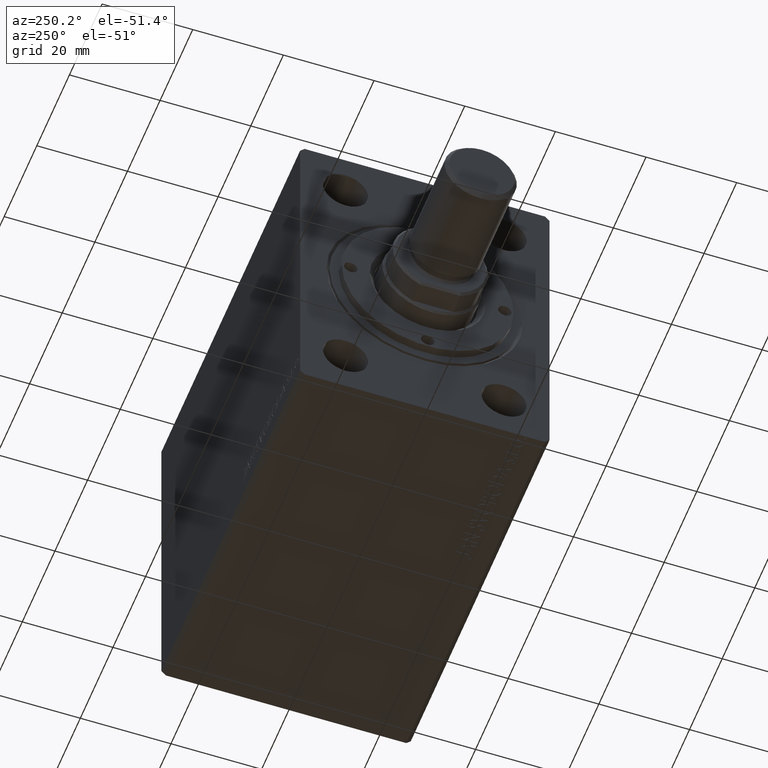
[diagram: clean part render]
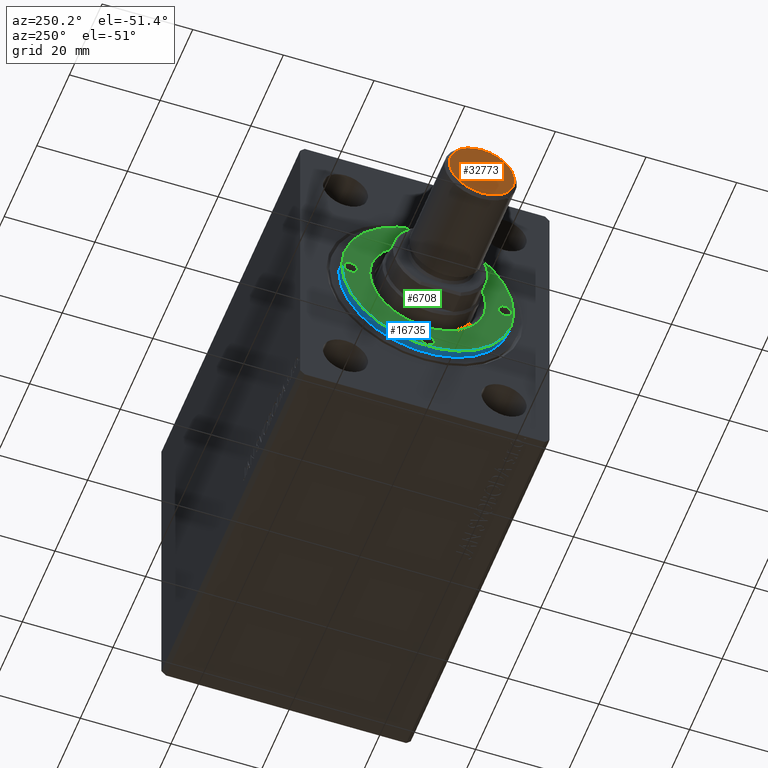
[diagram: same view with three faces highlighted in distinct colors, each labeled with its STEP entity id]
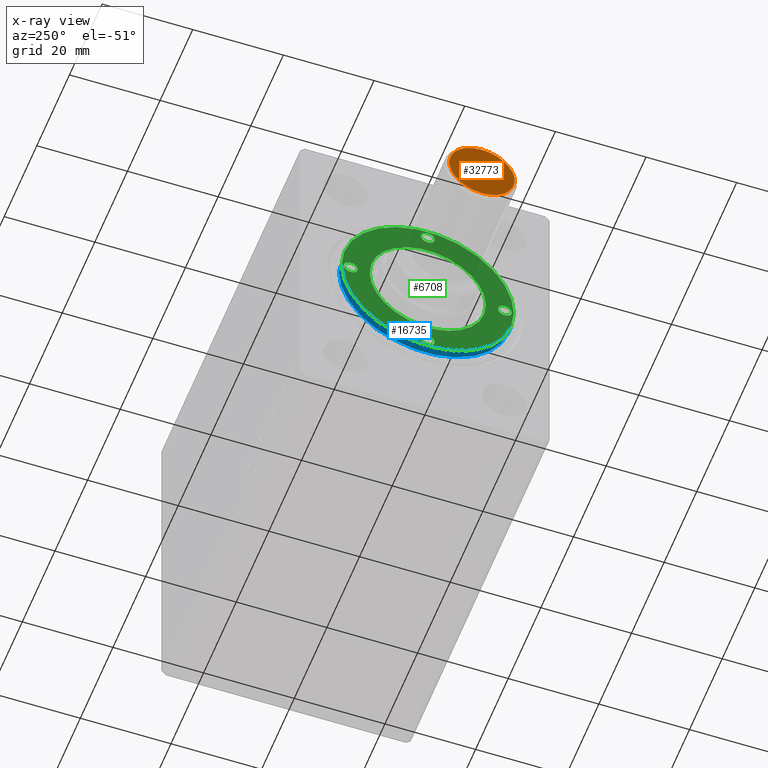
[diagram: x-ray of the same camera — body ghosted, the three highlighted faces saturated]
A machine part, auxiliary view with three faces highlighted in distinct colors.
The next image is the same camera in x-ray (body ghosted, the three faces saturated) — at least one of them is partly hidden behind the body in this view.
Their STEP definitions:

[orange] entity #32773 — the highlighted planar face has unit normal (1, -0, -0).
#2075 = EDGE_CURVE ( 'NONE', #15907, #5575, #24655, .T. ) ;
#4460 = CARTESIAN_POINT ( 'NONE',  ( 0.000000000000000000, 0.000000000000000000, 0.000000000000000000 ) ) ;
#5575 = VERTEX_POINT ( 'NONE', #35274 ) ;
#7605 = DIRECTION ( 'NONE',  ( 1.000000000000000000, 0.000000000000000000, 0.000000000000000000 ) ) ;
#10264 = FACE_OUTER_BOUND ( 'NONE', #11989, .T. ) ;
#11989 = EDGE_LOOP ( 'NONE', ( #17462, #38004 ) ) ;
#15325 = AXIS2_PLACEMENT_3D ( 'NONE', #4460, #38378, #7605 ) ;
#15907 = VERTEX_POINT ( 'NONE', #17241 ) ;
#16512 = CARTESIAN_POINT ( 'NONE',  ( 0.000000000000000000, 0.000000000000000000, 0.000000000000000000 ) ) ;
#16985 = PLANE ( 'NONE',  #30335 ) ;
#17241 = CARTESIAN_POINT ( 'NONE',  ( -7.199999999999978861, 9.307315673519871654E-16, 0.000000000000000000 ) ) ;
#17462 = ORIENTED_EDGE ( 'NONE', *, *, #26221, .T. ) ;
#20128 = DIRECTION ( 'NONE',  ( 0.000000000000000000, 0.000000000000000000, 1.000000000000000000 ) ) ;
#21457 = CIRCLE ( 'NONE', #42991, 7.199999999999978861 ) ;
#24655 = CIRCLE ( 'NONE', #15325, 7.199999999999978861 ) ;
#26221 = EDGE_CURVE ( 'NONE', #5575, #15907, #21457, .T. ) ;
#30335 = AXIS2_PLACEMENT_3D ( 'NONE', #37665, #20128, #36997 ) ;
#32773 = ADVANCED_FACE ( 'NONE', ( #10264 ), #16985, .F. ) ;
#35274 = CARTESIAN_POINT ( 'NONE',  ( 7.199999999999978861, 0.000000000000000000, 0.000000000000000000 ) ) ;
#36997 = DIRECTION ( 'NONE',  ( 1.000000000000000000, 0.000000000000000000, -0.000000000000000000 ) ) ;
#37665 = CARTESIAN_POINT ( 'NONE',  ( 0.000000000000000000, 0.000000000000000000, 0.000000000000000000 ) ) ;
#38004 = ORIENTED_EDGE ( 'NONE', *, *, #2075, .T. ) ;
#38378 = DIRECTION ( 'NONE',  ( -0.000000000000000000, -0.000000000000000000, -1.000000000000000000 ) ) ;
#41440 = DIRECTION ( 'NONE',  ( 1.000000000000000000, 0.000000000000000000, 0.000000000000000000 ) ) ;
#42991 = AXIS2_PLACEMENT_3D ( 'NONE', #16512, #43706, #41440 ) ;
#43706 = DIRECTION ( 'NONE',  ( -0.000000000000000000, -0.000000000000000000, -1.000000000000000000 ) ) ;

[blue] entity #16735 — the highlighted cylindrical surface (partial cylindrical patch) has radius 19 mm, axis along (1, -0, 0).
#471 = VECTOR ( 'NONE', #7290, 1000.000000000000000 ) ;
#790 = CIRCLE ( 'NONE', #35933, 19.00000000000000000 ) ;
#1188 = VECTOR ( 'NONE', #4803, 1000.000000000000000 ) ;
#4132 = CARTESIAN_POINT ( 'NONE',  ( -19.00000000000000000, 0.000000000000000000, 9.999999999999998224 ) ) ;
#4525 = VERTEX_POINT ( 'NONE', #9909 ) ;
#4803 = DIRECTION ( 'NONE',  ( -0.000000000000000000, -0.000000000000000000, -1.000000000000000000 ) ) ;
#4810 = ORIENTED_EDGE ( 'NONE', *, *, #14011, .F. ) ;
#6768 = DIRECTION ( 'NONE',  ( 0.000000000000000000, 0.000000000000000000, 1.000000000000000000 ) ) ;
#7290 = DIRECTION ( 'NONE',  ( -0.000000000000000000, -0.000000000000000000, -1.000000000000000000 ) ) ;
#8098 = DIRECTION ( 'NONE',  ( -0.000000000000000000, -0.000000000000000000, -1.000000000000000000 ) ) ;
#8254 = ORIENTED_EDGE ( 'NONE', *, *, #31300, .F. ) ;
#9909 = CARTESIAN_POINT ( 'NONE',  ( -19.00000000000000000, 0.000000000000000000, 8.199999999999999289 ) ) ;
#13417 = AXIS2_PLACEMENT_3D ( 'NONE', #13489, #27201, #40013 ) ;
#13489 = CARTESIAN_POINT ( 'NONE',  ( 0.000000000000000000, 0.000000000000000000, 8.199999999999999289 ) ) ;
#14011 = EDGE_CURVE ( 'NONE', #32366, #4525, #43696, .T. ) ;
#14101 = EDGE_CURVE ( 'NONE', #41631, #35534, #35575, .T. ) ;
#15050 = FACE_OUTER_BOUND ( 'NONE', #27544, .T. ) ;
#15633 = ORIENTED_EDGE ( 'NONE', *, *, #16483, .T. ) ;
#16483 = EDGE_CURVE ( 'NONE', #35534, #4525, #23460, .T. ) ;
#16735 = ADVANCED_FACE ( 'NONE', ( #15050 ), #32348, .T. ) ;
#18188 = DIRECTION ( 'NONE',  ( -1.000000000000000000, 0.000000000000000000, 0.000000000000000000 ) ) ;
#20392 = CARTESIAN_POINT ( 'NONE',  ( 19.00000000000000000, 2.326828918379970970E-15, 9.999999999999998224 ) ) ;
#20449 = DIRECTION ( 'NONE',  ( 1.000000000000000000, 0.000000000000000000, 0.000000000000000000 ) ) ;
#23460 = CIRCLE ( 'NONE', #13417, 19.00000000000000000 ) ;
#23839 = CARTESIAN_POINT ( 'NONE',  ( 0.000000000000000000, 0.000000000000000000, 9.999999999999998224 ) ) ;
#24111 = ORIENTED_EDGE ( 'NONE', *, *, #14101, .T. ) ;
#25022 = CARTESIAN_POINT ( 'NONE',  ( 19.00000000000000000, 2.326828918379970970E-15, 9.999999999999998224 ) ) ;
#27081 = AXIS2_PLACEMENT_3D ( 'NONE', #39534, #8098, #18188 ) ;
#27201 = DIRECTION ( 'NONE',  ( 0.000000000000000000, 0.000000000000000000, 1.000000000000000000 ) ) ;
#27544 = EDGE_LOOP ( 'NONE', ( #8254, #24111, #15633, #4810 ) ) ;
#31300 = EDGE_CURVE ( 'NONE', #41631, #32366, #790, .T. ) ;
#32348 = CYLINDRICAL_SURFACE ( 'NONE', #27081, 19.00000000000000000 ) ;
#32366 = VERTEX_POINT ( 'NONE', #33018 ) ;
#33018 = CARTESIAN_POINT ( 'NONE',  ( -19.00000000000000000, 0.000000000000000000, 9.999999999999998224 ) ) ;
#35534 = VERTEX_POINT ( 'NONE', #36214 ) ;
#35575 = LINE ( 'NONE', #25022, #1188 ) ;
#35933 = AXIS2_PLACEMENT_3D ( 'NONE', #23839, #6768, #20449 ) ;
#36214 = CARTESIAN_POINT ( 'NONE',  ( 19.00000000000000000, 2.326828918379970970E-15, 8.199999999999999289 ) ) ;
#39534 = CARTESIAN_POINT ( 'NONE',  ( 0.000000000000000000, 0.000000000000000000, 9.999999999999998224 ) ) ;
#40013 = DIRECTION ( 'NONE',  ( 1.000000000000000000, 0.000000000000000000, 0.000000000000000000 ) ) ;
#41631 = VERTEX_POINT ( 'NONE', #20392 ) ;
#43696 = LINE ( 'NONE', #4132, #471 ) ;

[green] entity #6708 — the highlighted planar face has unit normal (-1, 0, 0).
#30 = FACE_BOUND ( 'NONE', #4094, .T. ) ;
#43 = ORIENTED_EDGE ( 'NONE', *, *, #19773, .F. ) ;
#713 = EDGE_LOOP ( 'NONE', ( #43648, #43 ) ) ;
#753 = CIRCLE ( 'NONE', #10795, 1.499999999999997780 ) ;
#790 = CIRCLE ( 'NONE', #35933, 19.00000000000000000 ) ;
#1466 = AXIS2_PLACEMENT_3D ( 'NONE', #42974, #5025, #18913 ) ;
#1606 = DIRECTION ( 'NONE',  ( -0.000000000000000000, -0.000000000000000000, 1.000000000000000000 ) ) ;
#3048 = CARTESIAN_POINT ( 'NONE',  ( -18.50000000000000000, 1.836970198721026236E-16, 9.999999999999998224 ) ) ;
#3472 = CIRCLE ( 'NONE', #10634, 12.79999999999997407 ) ;
#4094 = EDGE_LOOP ( 'NONE', ( #41979, #28361 ) ) ;
#4120 = CIRCLE ( 'NONE', #14154, 1.499999999999996891 ) ;
#4435 = CARTESIAN_POINT ( 'NONE',  ( 0.000000000000000000, -17.00000000000000000, 9.999999999999998224 ) ) ;
#4471 = EDGE_LOOP ( 'NONE', ( #30157, #41298 ) ) ;
#4545 = DIRECTION ( 'NONE',  ( 1.000000000000000000, 0.000000000000000000, 0.000000000000000000 ) ) ;
#4724 = DIRECTION ( 'NONE',  ( -0.000000000000000000, -0.000000000000000000, 1.000000000000000000 ) ) ;
#5025 = DIRECTION ( 'NONE',  ( -0.000000000000000000, -0.000000000000000000, -1.000000000000000000 ) ) ;
#5566 = CIRCLE ( 'NONE', #34976, 1.499999999999996891 ) ;
#6019 = DIRECTION ( 'NONE',  ( 1.000000000000000000, 0.000000000000000000, 0.000000000000000000 ) ) ;
#6708 = ADVANCED_FACE ( 'NONE', ( #31019, #26980, #30, #24282, #30569, #33944 ), #13939, .T. ) ;
#6762 = CARTESIAN_POINT ( 'NONE',  ( 18.50000000000000000, 0.000000000000000000, 9.999999999999998224 ) ) ;
#6766 = CARTESIAN_POINT ( 'NONE',  ( 0.000000000000000000, 0.000000000000000000, 9.999999999999998224 ) ) ;
#6768 = DIRECTION ( 'NONE',  ( 0.000000000000000000, 0.000000000000000000, 1.000000000000000000 ) ) ;
#6859 = CARTESIAN_POINT ( 'NONE',  ( 0.000000000000000000, -17.00000000000000000, 9.999999999999998224 ) ) ;
#7738 = VERTEX_POINT ( 'NONE', #30314 ) ;
#7858 = VERTEX_POINT ( 'NONE', #41533 ) ;
#9127 = CIRCLE ( 'NONE', #27077, 1.499999999999996891 ) ;
#10104 = ORIENTED_EDGE ( 'NONE', *, *, #41103, .F. ) ;
#10482 = CARTESIAN_POINT ( 'NONE',  ( 17.00000000000000000, 0.000000000000000000, 9.999999999999998224 ) ) ;
#10634 = AXIS2_PLACEMENT_3D ( 'NONE', #38616, #11657, #38391 ) ;
#10795 = AXIS2_PLACEMENT_3D ( 'NONE', #10482, #34513, #34066 ) ;
#10805 = DIRECTION ( 'NONE',  ( 1.000000000000000000, 0.000000000000000000, -0.000000000000000000 ) ) ;
#10948 = DIRECTION ( 'NONE',  ( 1.000000000000000000, 0.000000000000000000, 0.000000000000000000 ) ) ;
#11657 = DIRECTION ( 'NONE',  ( -0.000000000000000000, -0.000000000000000000, -1.000000000000000000 ) ) ;
#11929 = EDGE_CURVE ( 'NONE', #25960, #21723, #35555, .T. ) ;
#12867 = CIRCLE ( 'NONE', #37978, 1.499999999999996891 ) ;
#13512 = VERTEX_POINT ( 'NONE', #32092 ) ;
#13939 = PLANE ( 'NONE',  #33274 ) ;
#14154 = AXIS2_PLACEMENT_3D ( 'NONE', #4435, #41731, #10948 ) ;
#15105 = CARTESIAN_POINT ( 'NONE',  ( 12.79999999999997407, 0.000000000000000000, 9.999999999999998224 ) ) ;
#15270 = DIRECTION ( 'NONE',  ( 1.000000000000000000, 0.000000000000000000, 0.000000000000000000 ) ) ;
#15385 = CARTESIAN_POINT ( 'NONE',  ( -17.00000000000000000, 0.000000000000000000, 9.999999999999998224 ) ) ;
#16345 = DIRECTION ( 'NONE',  ( -0.000000000000000000, -0.000000000000000000, 1.000000000000000000 ) ) ;
#16801 = EDGE_CURVE ( 'NONE', #7738, #32352, #5566, .T. ) ;
#17087 = DIRECTION ( 'NONE',  ( 0.000000000000000000, 0.000000000000000000, 1.000000000000000000 ) ) ;
#18119 = EDGE_CURVE ( 'NONE', #41851, #33988, #31417, .T. ) ;
#18913 = DIRECTION ( 'NONE',  ( 1.000000000000000000, 0.000000000000000000, 0.000000000000000000 ) ) ;
#19367 = DIRECTION ( 'NONE',  ( -0.000000000000000000, -0.000000000000000000, 1.000000000000000000 ) ) ;
#19773 = EDGE_CURVE ( 'NONE', #21723, #25960, #20548, .T. ) ;
#19835 = AXIS2_PLACEMENT_3D ( 'NONE', #37356, #19367, #33311 ) ;
#19905 = AXIS2_PLACEMENT_3D ( 'NONE', #21598, #1606, #4545 ) ;
#20389 = EDGE_CURVE ( 'NONE', #32352, #7738, #9127, .T. ) ;
#20392 = CARTESIAN_POINT ( 'NONE',  ( 19.00000000000000000, 2.326828918379970970E-15, 9.999999999999998224 ) ) ;
#20404 = ORIENTED_EDGE ( 'NONE', *, *, #31300, .T. ) ;
#20449 = DIRECTION ( 'NONE',  ( 1.000000000000000000, 0.000000000000000000, 0.000000000000000000 ) ) ;
#20540 = DIRECTION ( 'NONE',  ( -0.000000000000000000, -0.000000000000000000, 1.000000000000000000 ) ) ;
#20548 = CIRCLE ( 'NONE', #19835, 1.499999999999997780 ) ;
#20665 = EDGE_LOOP ( 'NONE', ( #32632, #34320 ) ) ;
#20731 = EDGE_CURVE ( 'NONE', #7858, #33027, #4120, .T. ) ;
#20806 = CIRCLE ( 'NONE', #1466, 12.79999999999997407 ) ;
#21455 = DIRECTION ( 'NONE',  ( -0.000000000000000000, -0.000000000000000000, 1.000000000000000000 ) ) ;
#21598 = CARTESIAN_POINT ( 'NONE',  ( 17.00000000000000000, 0.000000000000000000, 9.999999999999998224 ) ) ;
#21723 = VERTEX_POINT ( 'NONE', #3048 ) ;
#22069 = VERTEX_POINT ( 'NONE', #15105 ) ;
#22446 = CARTESIAN_POINT ( 'NONE',  ( 0.000000000000000000, 17.00000000000000000, 9.999999999999998224 ) ) ;
#23275 = CARTESIAN_POINT ( 'NONE',  ( 15.50000000000000355, 1.836970198721027222E-16, 9.999999999999998224 ) ) ;
#23839 = CARTESIAN_POINT ( 'NONE',  ( 0.000000000000000000, 0.000000000000000000, 9.999999999999998224 ) ) ;
#23980 = DIRECTION ( 'NONE',  ( 0.000000000000000000, 0.000000000000000000, 1.000000000000000000 ) ) ;
#24074 = ORIENTED_EDGE ( 'NONE', *, *, #20731, .F. ) ;
#24271 = EDGE_CURVE ( 'NONE', #32366, #41631, #37186, .T. ) ;
#24282 = FACE_BOUND ( 'NONE', #42046, .T. ) ;
#24610 = DIRECTION ( 'NONE',  ( 1.000000000000000000, 0.000000000000000000, 0.000000000000000000 ) ) ;
#25960 = VERTEX_POINT ( 'NONE', #41063 ) ;
#26980 = FACE_BOUND ( 'NONE', #4471, .T. ) ;
#27077 = AXIS2_PLACEMENT_3D ( 'NONE', #33201, #16345, #43770 ) ;
#27519 = DIRECTION ( 'NONE',  ( 1.000000000000000000, 0.000000000000000000, 0.000000000000000000 ) ) ;
#28361 = ORIENTED_EDGE ( 'NONE', *, *, #18119, .F. ) ;
#30157 = ORIENTED_EDGE ( 'NONE', *, *, #16801, .F. ) ;
#30314 = CARTESIAN_POINT ( 'NONE',  ( 1.499999999999996891, 17.00000000000000000, 9.999999999999998224 ) ) ;
#30569 = FACE_BOUND ( 'NONE', #20665, .T. ) ;
#31019 = FACE_BOUND ( 'NONE', #713, .T. ) ;
#31300 = EDGE_CURVE ( 'NONE', #41631, #32366, #790, .T. ) ;
#31417 = CIRCLE ( 'NONE', #19905, 1.499999999999997780 ) ;
#32092 = CARTESIAN_POINT ( 'NONE',  ( -12.79999999999997407, 1.567547902908609029E-15, 9.999999999999998224 ) ) ;
#32352 = VERTEX_POINT ( 'NONE', #32791 ) ;
#32366 = VERTEX_POINT ( 'NONE', #33018 ) ;
#32632 = ORIENTED_EDGE ( 'NONE', *, *, #33476, .T. ) ;
#32791 = CARTESIAN_POINT ( 'NONE',  ( -1.499999999999996891, 17.00000000000000000, 9.999999999999998224 ) ) ;
#33018 = CARTESIAN_POINT ( 'NONE',  ( -19.00000000000000000, 0.000000000000000000, 9.999999999999998224 ) ) ;
#33027 = VERTEX_POINT ( 'NONE', #40761 ) ;
#33201 = CARTESIAN_POINT ( 'NONE',  ( 0.000000000000000000, 17.00000000000000000, 9.999999999999998224 ) ) ;
#33274 = AXIS2_PLACEMENT_3D ( 'NONE', #6766, #17087, #10805 ) ;
#33311 = DIRECTION ( 'NONE',  ( 1.000000000000000000, 0.000000000000000000, 0.000000000000000000 ) ) ;
#33476 = EDGE_CURVE ( 'NONE', #22069, #13512, #3472, .T. ) ;
#33944 = FACE_OUTER_BOUND ( 'NONE', #41386, .T. ) ;
#33988 = VERTEX_POINT ( 'NONE', #6762 ) ;
#34066 = DIRECTION ( 'NONE',  ( 1.000000000000000000, 0.000000000000000000, 0.000000000000000000 ) ) ;
#34304 = CARTESIAN_POINT ( 'NONE',  ( 0.000000000000000000, 0.000000000000000000, 9.999999999999998224 ) ) ;
#34320 = ORIENTED_EDGE ( 'NONE', *, *, #43975, .T. ) ;
#34513 = DIRECTION ( 'NONE',  ( -0.000000000000000000, -0.000000000000000000, 1.000000000000000000 ) ) ;
#34976 = AXIS2_PLACEMENT_3D ( 'NONE', #22446, #4724, #15270 ) ;
#35555 = CIRCLE ( 'NONE', #39155, 1.499999999999997780 ) ;
#35933 = AXIS2_PLACEMENT_3D ( 'NONE', #23839, #6768, #20449 ) ;
#37186 = CIRCLE ( 'NONE', #42924, 19.00000000000000000 ) ;
#37356 = CARTESIAN_POINT ( 'NONE',  ( -17.00000000000000000, 0.000000000000000000, 9.999999999999998224 ) ) ;
#37978 = AXIS2_PLACEMENT_3D ( 'NONE', #6859, #20540, #27519 ) ;
#38391 = DIRECTION ( 'NONE',  ( 1.000000000000000000, 0.000000000000000000, 0.000000000000000000 ) ) ;
#38616 = CARTESIAN_POINT ( 'NONE',  ( 0.000000000000000000, 0.000000000000000000, 9.999999999999998224 ) ) ;
#39155 = AXIS2_PLACEMENT_3D ( 'NONE', #15385, #21455, #24610 ) ;
#40761 = CARTESIAN_POINT ( 'NONE',  ( 1.499999999999996891, -17.00000000000000000, 9.999999999999998224 ) ) ;
#41063 = CARTESIAN_POINT ( 'NONE',  ( -15.50000000000000355, 0.000000000000000000, 9.999999999999998224 ) ) ;
#41103 = EDGE_CURVE ( 'NONE', #33027, #7858, #12867, .T. ) ;
#41298 = ORIENTED_EDGE ( 'NONE', *, *, #20389, .F. ) ;
#41386 = EDGE_LOOP ( 'NONE', ( #41664, #20404 ) ) ;
#41533 = CARTESIAN_POINT ( 'NONE',  ( -1.499999999999996891, -17.00000000000000000, 9.999999999999998224 ) ) ;
#41631 = VERTEX_POINT ( 'NONE', #20392 ) ;
#41664 = ORIENTED_EDGE ( 'NONE', *, *, #24271, .T. ) ;
#41731 = DIRECTION ( 'NONE',  ( -0.000000000000000000, -0.000000000000000000, 1.000000000000000000 ) ) ;
#41851 = VERTEX_POINT ( 'NONE', #23275 ) ;
#41979 = ORIENTED_EDGE ( 'NONE', *, *, #43515, .F. ) ;
#42046 = EDGE_LOOP ( 'NONE', ( #10104, #24074 ) ) ;
#42924 = AXIS2_PLACEMENT_3D ( 'NONE', #34304, #23980, #6019 ) ;
#42974 = CARTESIAN_POINT ( 'NONE',  ( 0.000000000000000000, 0.000000000000000000, 9.999999999999998224 ) ) ;
#43515 = EDGE_CURVE ( 'NONE', #33988, #41851, #753, .T. ) ;
#43648 = ORIENTED_EDGE ( 'NONE', *, *, #11929, .F. ) ;
#43770 = DIRECTION ( 'NONE',  ( 1.000000000000000000, 0.000000000000000000, 0.000000000000000000 ) ) ;
#43975 = EDGE_CURVE ( 'NONE', #13512, #22069, #20806, .T. ) ;